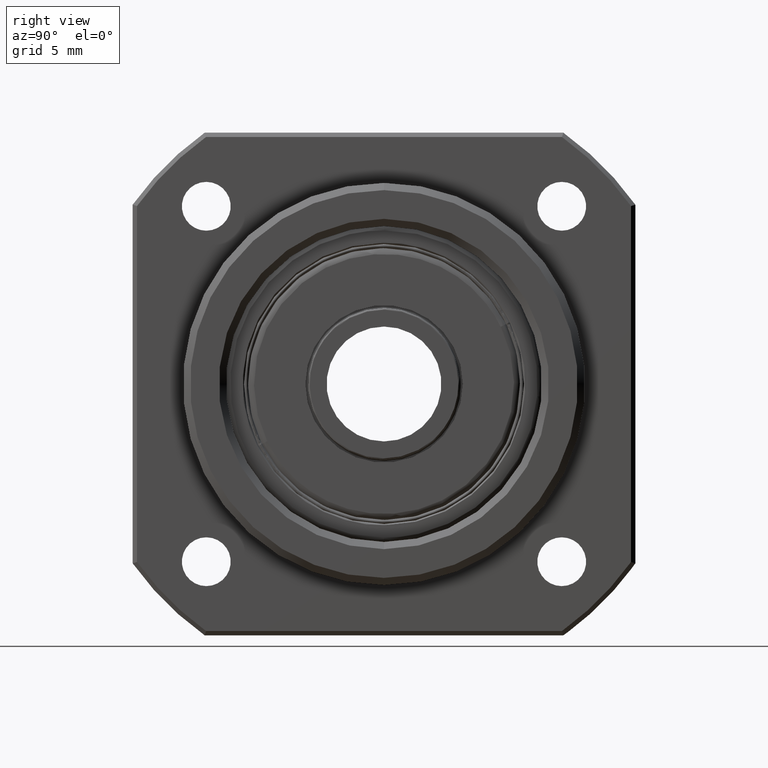
[diagram: clean part render]
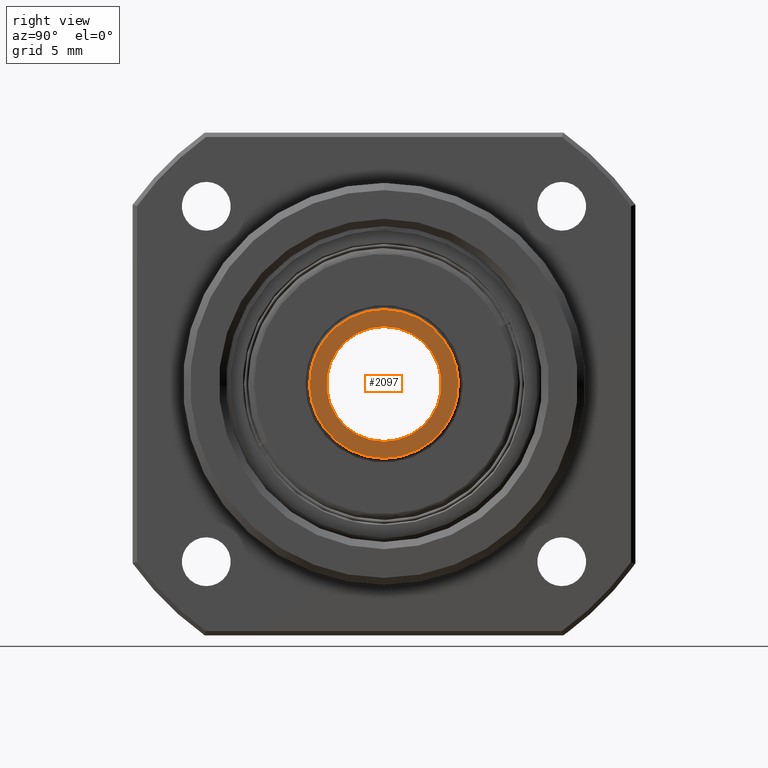
[diagram: same view with one face highlighted and labeled with its STEP entity id]
A machine part, right view. The second image highlights one B-rep face of the part: STEP entity #2097.
In plain terms, the highlighted planar face has unit normal (-1, 0, 0).
Its self-contained STEP definition (entity closure, byte-faithful):
#634 = ORIENTED_EDGE ( 'NONE', *, *, #980, .T. ) ;
#672 = CARTESIAN_POINT ( 'NONE',  ( 9.499999999999996400, -3.362830522556540500, 3.933445801909836200 ) ) ;
#683 = CARTESIAN_POINT ( 'NONE',  ( 9.499999999999996400, -11.22972212637621000, -2.792215243203243900 ) ) ;
#686 = CARTESIAN_POINT ( 'NONE',  ( 9.499999999999996400, -4.504061081263127900, -10.65910684702291500 ) ) ;
#692 = CARTESIAN_POINT ( 'NONE',  ( 9.499999999999996400, 3.362830522556541400, -3.933445801909836200 ) ) ;
#980 = EDGE_CURVE ( 'NONE', #3700, #4780, #6137, .T. ) ;
#1217 = AXIS2_PLACEMENT_3D ( 'NONE', #3753, #3733, #3713 ) ;
#1320 = ORIENTED_EDGE ( 'NONE', *, *, #3886, .F. ) ;
#1321 = CARTESIAN_POINT ( 'NONE',  ( 9.499999999999996400, 0.0000000000000000000, 4.000000000000003600 ) ) ;
#1529 = AXIS2_PLACEMENT_3D ( 'NONE', #4679, #5606, #5597 ) ;
#1740 = ORIENTED_EDGE ( 'NONE', *, *, #4698, .F. ) ;
#2097 = ADVANCED_FACE ( 'NONE', ( #5689, #5698 ), #5611, .F. ) ;
#2473 = VERTEX_POINT ( 'NONE', #6127 ) ;
#2842 = ORIENTED_EDGE ( 'NONE', *, *, #3960, .T. ) ;
#2866 = AXIS2_PLACEMENT_3D ( 'NONE', #3898, #3854, #3847 ) ;
#3062 = CARTESIAN_POINT ( 'NONE',  ( 9.499999999999996400, -3.362830522556540500, 3.933445801909836200 ) ) ;
#3313 = CIRCLE ( 'NONE', #1217, 4.000000000000003600 ) ;
#3392 = EDGE_LOOP ( 'NONE', ( #2842, #634 ) ) ;
#3700 = VERTEX_POINT ( 'NONE', #4998 ) ;
#3713 = DIRECTION ( 'NONE',  ( 0.0000000000000000000, 0.0000000000000000000, 1.000000000000000000 ) ) ;
#3733 = DIRECTION ( 'NONE',  ( -1.000000000000000000, 0.0000000000000000000, 0.0000000000000000000 ) ) ;
#3753 = CARTESIAN_POINT ( 'NONE',  ( 9.499999999999996400, 0.0000000000000000000, 0.0000000000000000000 ) ) ;
#3847 = DIRECTION ( 'NONE',  ( 0.0000000000000000000, 0.0000000000000000000, 1.000000000000000000 ) ) ;
#3854 = DIRECTION ( 'NONE',  ( -1.000000000000000000, 0.0000000000000000000, 0.0000000000000000000 ) ) ;
#3886 = EDGE_CURVE ( 'NONE', #6375, #2473, #5018, .T. ) ;
#3898 = CARTESIAN_POINT ( 'NONE',  ( 9.499999999999996400, 0.0000000000000000000, 0.0000000000000000000 ) ) ;
#3960 = EDGE_CURVE ( 'NONE', #4780, #3700, #3313, .T. ) ;
#4141 = CARTESIAN_POINT ( 'NONE',  ( 9.499999999999996400, 3.362830522556541400, -3.933445801909836200 ) ) ;
#4143 = CARTESIAN_POINT ( 'NONE',  ( 9.499999999999996400, 11.22972212637621000, 2.792215243203244800 ) ) ;
#4154 = CARTESIAN_POINT ( 'NONE',  ( 9.499999999999996400, 4.504061081263127900, 10.65910684702291500 ) ) ;
#4229 = CARTESIAN_POINT ( 'NONE',  ( 9.499999999999996400, -3.362830522556540500, 3.933445801909836200 ) ) ;
#4455 = EDGE_LOOP ( 'NONE', ( #1740, #1320 ) ) ;
#4679 = CARTESIAN_POINT ( 'NONE',  ( 9.499999999999996400, 3.040344581186347700, 2.599289292797330600 ) ) ;
#4698 = EDGE_CURVE ( 'NONE', #2473, #6375, #5013, .T. ) ;
#4780 = VERTEX_POINT ( 'NONE', #1321 ) ;
#4998 = CARTESIAN_POINT ( 'NONE',  ( 9.499999999999996400, 4.898587196589417800E-016, -4.000000000000003600 ) ) ;
#5013 =( BOUNDED_CURVE ( )  B_SPLINE_CURVE ( 3, ( #692, #686, #683, #672 ),
 .UNSPECIFIED., .F., .F. ) 
 B_SPLINE_CURVE_WITH_KNOTS ( ( 4, 4 ),
 ( 0.0000000000000000000, 1.000000000000000000 ),
 .UNSPECIFIED. ) 
 CURVE ( )  GEOMETRIC_REPRESENTATION_ITEM ( )  RATIONAL_B_SPLINE_CURVE ( ( 1.000000000000000000, 0.3333333333333333700, 0.3333333333333333700, 1.000000000000000000 ) ) 
 REPRESENTATION_ITEM ( '' )  );
#5018 =( BOUNDED_CURVE ( )  B_SPLINE_CURVE ( 3, ( #4229, #4154, #4143, #4141 ),
 .UNSPECIFIED., .F., .T. ) 
 B_SPLINE_CURVE_WITH_KNOTS ( ( 4, 4 ),
 ( 0.0000000000000000000, 1.000000000000000000 ),
 .UNSPECIFIED. ) 
 CURVE ( )  GEOMETRIC_REPRESENTATION_ITEM ( )  RATIONAL_B_SPLINE_CURVE ( ( 1.000000000000000000, 0.3333333333333333700, 0.3333333333333333700, 1.000000000000000000 ) ) 
 REPRESENTATION_ITEM ( '' )  );
#5597 = DIRECTION ( 'NONE',  ( 0.0000000000000000000, 0.0000000000000000000, 1.000000000000000000 ) ) ;
#5606 = DIRECTION ( 'NONE',  ( -1.000000000000000000, 0.0000000000000000000, 0.0000000000000000000 ) ) ;
#5611 = PLANE ( 'NONE',  #1529 ) ;
#5689 = FACE_BOUND ( 'NONE', #3392, .T. ) ;
#5698 = FACE_OUTER_BOUND ( 'NONE', #4455, .T. ) ;
#6127 = CARTESIAN_POINT ( 'NONE',  ( 9.499999999999996400, 3.362830522556541400, -3.933445801909836200 ) ) ;
#6137 = CIRCLE ( 'NONE', #2866, 4.000000000000003600 ) ;
#6375 = VERTEX_POINT ( 'NONE', #3062 ) ;